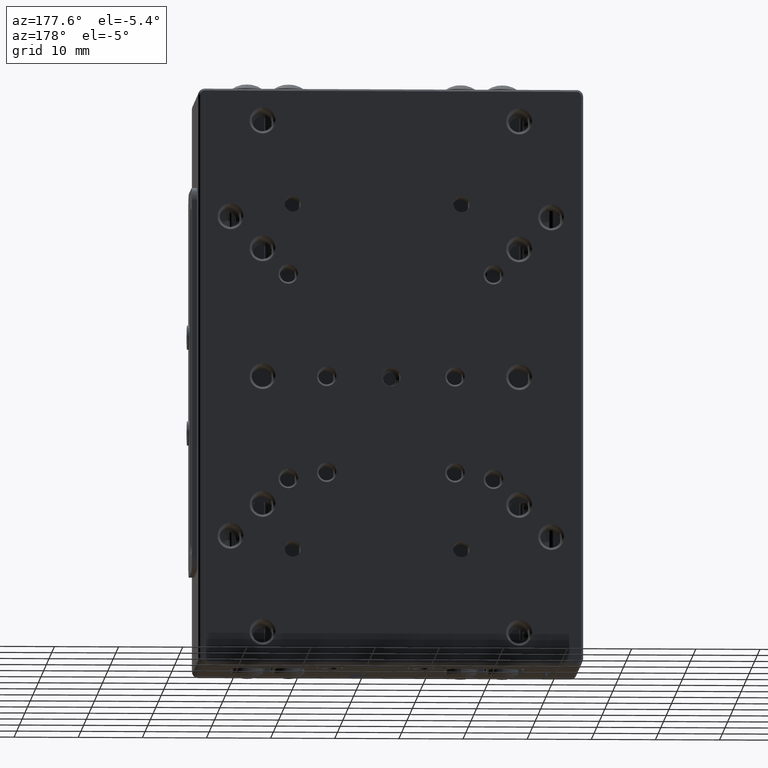
[diagram: clean part render]
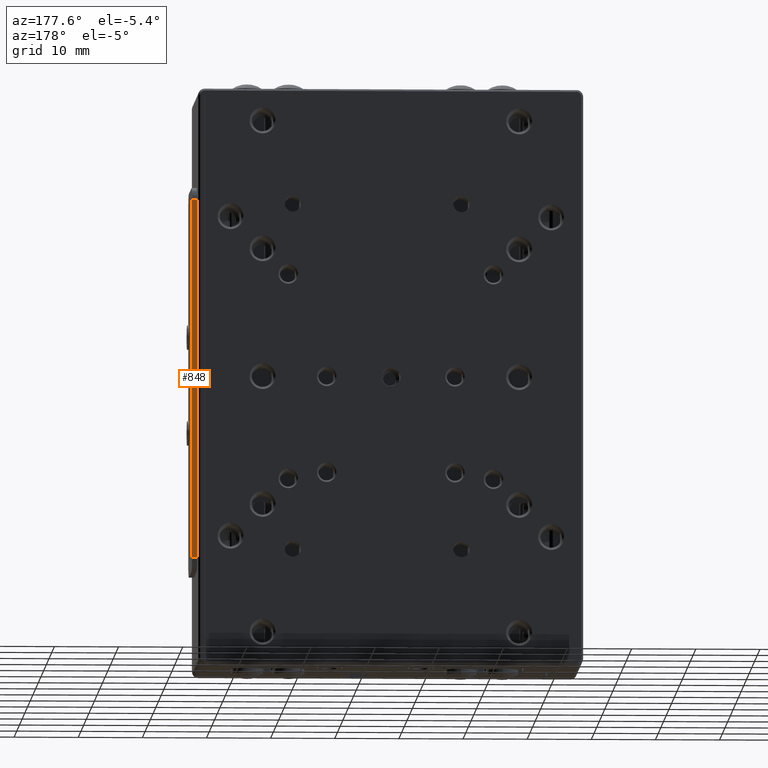
[diagram: same view with one face highlighted and labeled with its STEP entity id]
A machine part, auxiliary view. The second image highlights one B-rep face of the part: STEP entity #848.
In plain terms, the highlighted planar face has unit normal (0, 1, -0).
Its self-contained STEP definition (entity closure, byte-faithful):
#255 = DIRECTION ( 'NONE',  ( 1.000000000000000000, 0.000000000000000000, 0.000000000000000000 ) ) ;
#530 = EDGE_CURVE ( 'NONE', #11804, #3511, #11687, .T. ) ;
#848 = ADVANCED_FACE ( 'NONE', ( #13086 ), #17826, .T. ) ;
#1127 = CARTESIAN_POINT ( 'NONE',  ( -17.57627118644064979, 14.23728813559321971, -0.8000000000000000444 ) ) ;
#3290 = VECTOR ( 'NONE', #16953, 1000.000000000000000 ) ;
#3511 = VERTEX_POINT ( 'NONE', #21705 ) ;
#3758 = VECTOR ( 'NONE', #6031, 1000.000000000000000 ) ;
#4030 = VECTOR ( 'NONE', #5324, 1000.000000000000000 ) ;
#5013 = DIRECTION ( 'NONE',  ( -0.000000000000000000, 1.000000000000000000, 0.000000000000000000 ) ) ;
#5324 = DIRECTION ( 'NONE',  ( -1.000000000000000000, 0.000000000000000000, 0.000000000000000000 ) ) ;
#6031 = DIRECTION ( 'NONE',  ( -1.000000000000000000, 0.000000000000000000, 0.000000000000000000 ) ) ;
#6452 = LINE ( 'NONE', #18827, #3758 ) ;
#7702 = EDGE_CURVE ( 'NONE', #11804, #16056, #8372, .T. ) ;
#8282 = LINE ( 'NONE', #22648, #23661 ) ;
#8372 = LINE ( 'NONE', #10350, #3290 ) ;
#9788 = EDGE_CURVE ( 'NONE', #13847, #3511, #8282, .T. ) ;
#9986 = DIRECTION ( 'NONE',  ( 0.000000000000000000, 0.000000000000000000, 1.000000000000000000 ) ) ;
#10350 = CARTESIAN_POINT ( 'NONE',  ( 38.42372881355935021, 14.23728813559321971, -0.8000000000000000444 ) ) ;
#10674 = EDGE_LOOP ( 'NONE', ( #11991, #15840, #20930, #14132 ) ) ;
#10967 = CARTESIAN_POINT ( 'NONE',  ( 40.42372881355935021, 14.23728813559321971, -0.8000000000000000444 ) ) ;
#11687 = LINE ( 'NONE', #18128, #4030 ) ;
#11804 = VERTEX_POINT ( 'NONE', #19905 ) ;
#11991 = ORIENTED_EDGE ( 'NONE', *, *, #14367, .T. ) ;
#12085 = CARTESIAN_POINT ( 'NONE',  ( 38.42372881355935021, 14.23728813559321971, -0.8000000000000000444 ) ) ;
#13086 = FACE_OUTER_BOUND ( 'NONE', #10674, .T. ) ;
#13517 = AXIS2_PLACEMENT_3D ( 'NONE', #10967, #5013, #255 ) ;
#13847 = VERTEX_POINT ( 'NONE', #1127 ) ;
#14132 = ORIENTED_EDGE ( 'NONE', *, *, #7702, .T. ) ;
#14367 = EDGE_CURVE ( 'NONE', #16056, #13847, #6452, .T. ) ;
#15840 = ORIENTED_EDGE ( 'NONE', *, *, #9788, .T. ) ;
#16056 = VERTEX_POINT ( 'NONE', #12085 ) ;
#16953 = DIRECTION ( 'NONE',  ( 0.000000000000000000, 0.000000000000000000, -1.000000000000000000 ) ) ;
#17826 = PLANE ( 'NONE',  #13517 ) ;
#18128 = CARTESIAN_POINT ( 'NONE',  ( 40.42372881355935021, 14.23728813559321971, 0.000000000000000000 ) ) ;
#18827 = CARTESIAN_POINT ( 'NONE',  ( 40.42372881355935021, 14.23728813559321971, -0.8000000000000000444 ) ) ;
#19905 = CARTESIAN_POINT ( 'NONE',  ( 38.42372881355935021, 14.23728813559321971, 0.000000000000000000 ) ) ;
#20930 = ORIENTED_EDGE ( 'NONE', *, *, #530, .F. ) ;
#21705 = CARTESIAN_POINT ( 'NONE',  ( -17.57627118644064979, 14.23728813559321971, 0.000000000000000000 ) ) ;
#22648 = CARTESIAN_POINT ( 'NONE',  ( -17.57627118644064979, 14.23728813559321971, -0.8000000000000000444 ) ) ;
#23661 = VECTOR ( 'NONE', #9986, 1000.000000000000000 ) ;